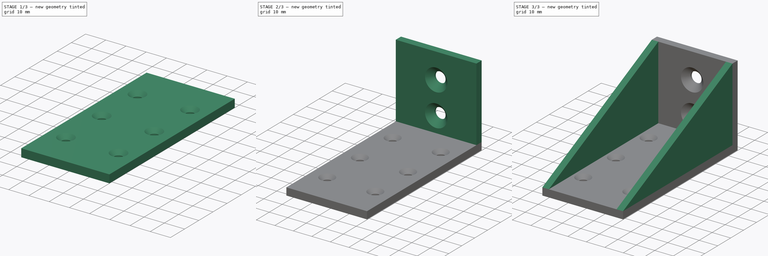
[diagram: build sequence overview — one tinted view per stage of 3, left to right]
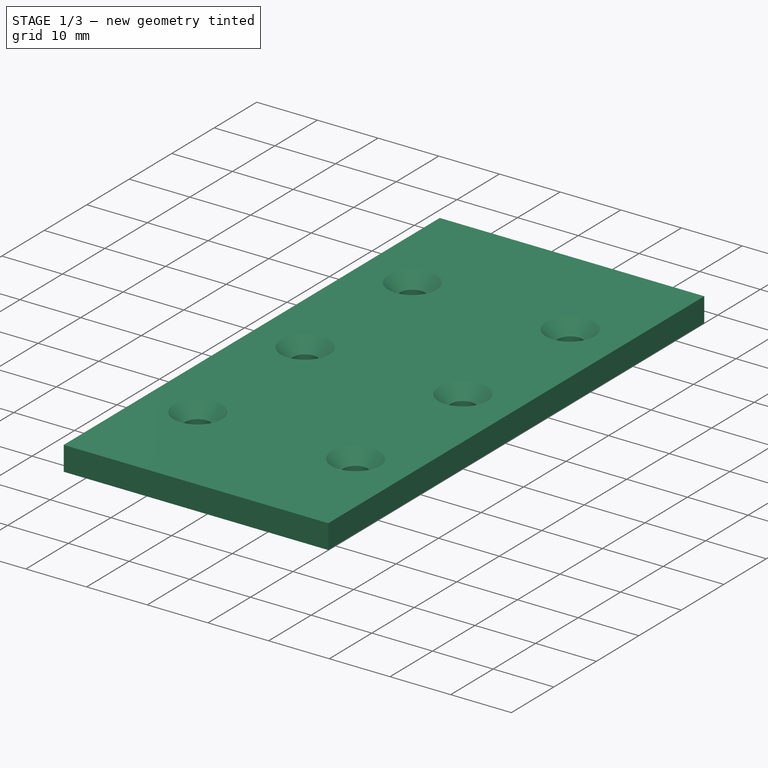
[diagram: stage 1 of 3 — iso view after this stage's code; geometry added in this stage tinted green]
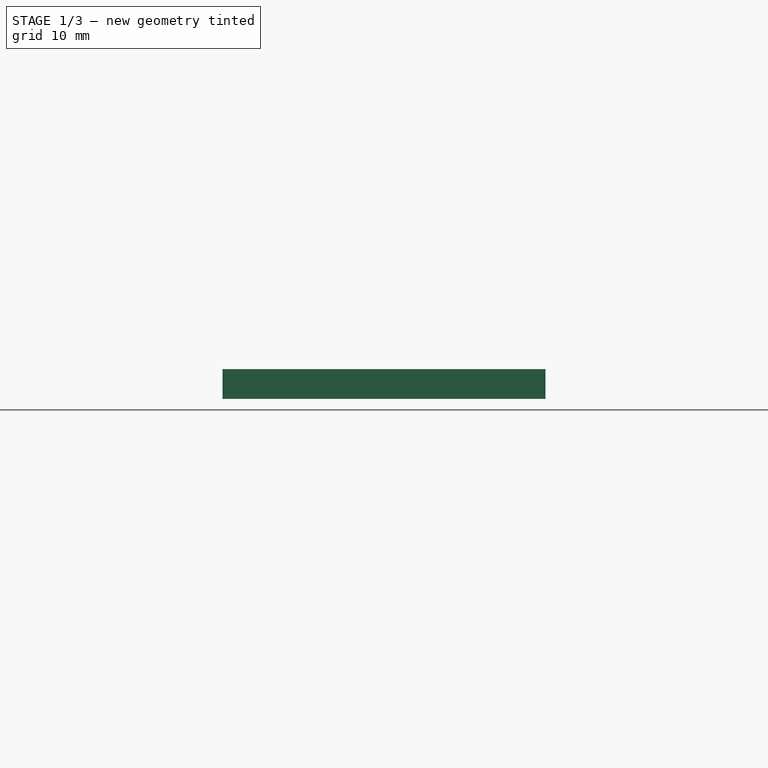
[diagram: stage 1 of 3 — front view after this stage's code; geometry added in this stage tinted green]
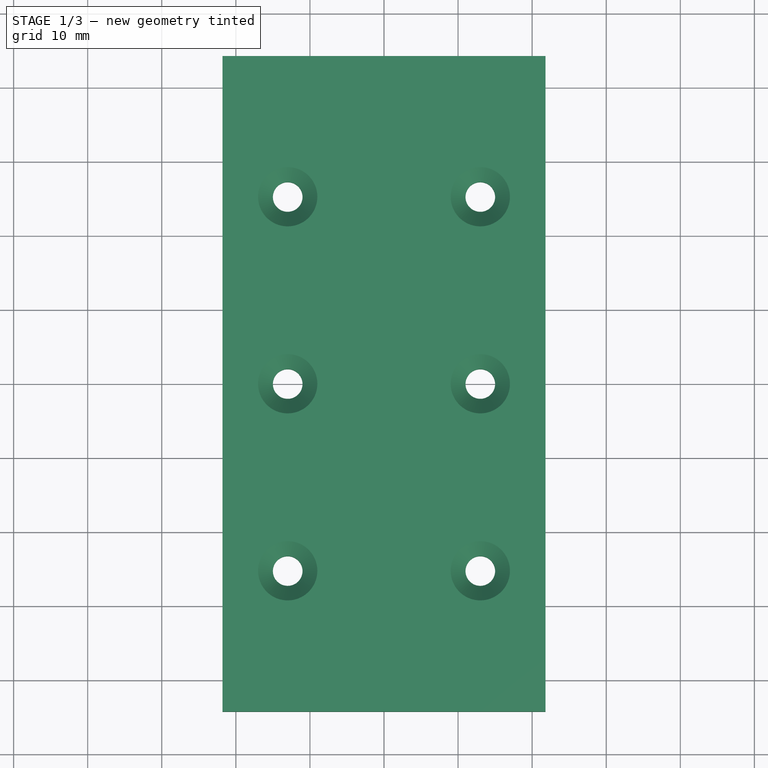
[diagram: stage 1 of 3 — top view after this stage's code; geometry added in this stage tinted green]
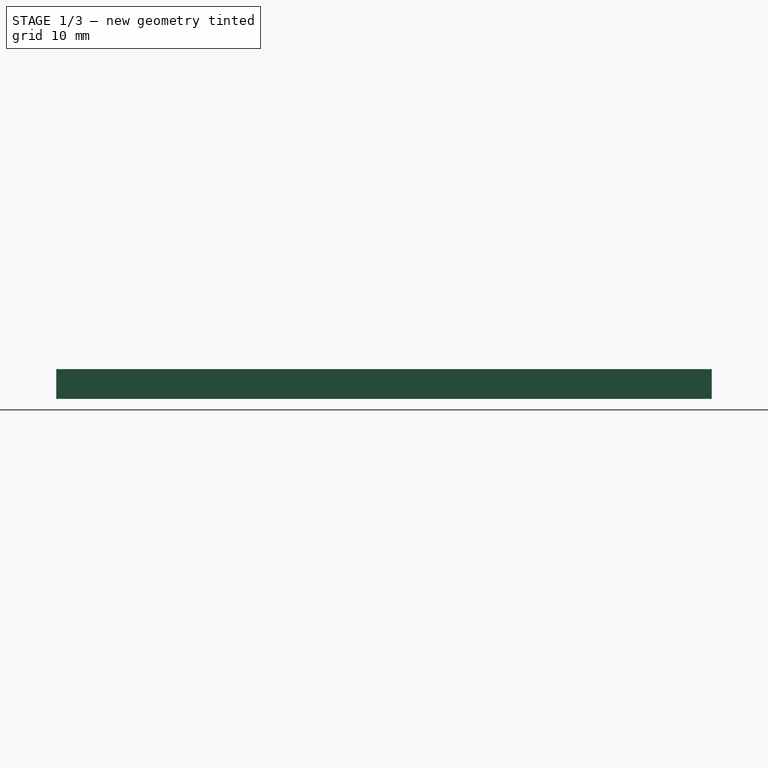
[diagram: stage 1 of 3 — right view after this stage's code; geometry added in this stage tinted green]
FCSTD DOCUMENT  (FreeCAD 1.0R39109 (Git))
Label: Side_Wall_Brackets
License: All rights reserved
LicenseURL: http://en.wikipedia.org/wiki/All_rights_reserved
objects: Sketcher::SketchObject×5, PartDesign::Pad×3, PartDesign::Chamfer×2, PartDesign::Hole×1, PartDesign::Pocket×1, PartDesign::Body×1, App::Part×1
note: 32 computed .brp shape members not serialized (recipe doc carries the construction recipe); baked Part::Feature solids carry a one-line shape summary decoded from their .brp

FEATURE [Sketcher::SketchObject] Sketch
  ArcFitTolerance = 0
  AttachmentSupport = -> [XY_Plane001]
  FullyConstrained = true
  MakeInternals = false
  MapMode = 5
  sketch-geometry (10):
    g0: LineSegment StartX=-21.8 StartY=44.25 StartZ=0 EndX=21.8 EndY=44.25 EndZ=0
    g1: LineSegment StartX=21.8 StartY=44.25 StartZ=0 EndX=21.8 EndY=-44.25 EndZ=0
    g2: LineSegment StartX=21.8 StartY=-44.25 StartZ=0 EndX=-21.8 EndY=-44.25 EndZ=0
    g3: LineSegment StartX=-21.8 StartY=-44.25 StartZ=0 EndX=-21.8 EndY=44.25 EndZ=0
    g4: Circle CenterX=-13 CenterY=0 CenterZ=0 NormalX=0 NormalY=0 NormalZ=1 AngleXU=0 Radius=2
    g5: Circle CenterX=13 CenterY=0 CenterZ=0 NormalX=0 NormalY=0 NormalZ=1 AngleXU=0 Radius=2
    g6: Circle CenterX=-13 CenterY=25.25 CenterZ=0 NormalX=0 NormalY=0 NormalZ=1 AngleXU=0 Radius=2
    g7: Circle CenterX=13 CenterY=25.25 CenterZ=0 NormalX=0 NormalY=0 NormalZ=1 AngleXU=0 Radius=2
    g8: Circle CenterX=-13 CenterY=-25.25 CenterZ=0 NormalX=0 NormalY=0 NormalZ=1 AngleXU=0 Radius=2
    g9: Circle CenterX=13 CenterY=-25.25 CenterZ=0 NormalX=0 NormalY=0 NormalZ=1 AngleXU=0 Radius=2
  constraints (29):
    c: Coincident(g0,g1)
    c: Coincident(g1,g2)
    c: Coincident(g2,g3)
    c: Coincident(g3,g0)
    c: Horizontal(g0)
    c: Horizontal(g2)
    c: Vertical(g1)
    c: Vertical(g3)
    c: DistanceX(g0,g0) = 43.6
    c: DistanceY(g3,g3) = 88.5
    c: Symmetric(g2,g0,g-1)
    c: PointOnObject(g4,g-1)
    c: PointOnObject(g5,g-1)
    c: Equal(g4,g5)
    c: Diameter(g4) = 4
    c: DistanceX(g4,g-1) = 13
    c: DistanceX(g4,g5) = 26
    c: Equal(g8,g9)
    c: Equal(g8,g6)
    c: Equal(g8,g7)
    c: Diameter(g8) = 4
    c: DistanceY(g6,g7) = 0
    c: DistanceY(g9,g8) = 0
    c: DistanceX(g6,g7) = 26
    c: DistanceX(g6,g-1) = 13
    c: DistanceX(g8,g-1) = 13
    c: DistanceX(g8,g9) = 26
    c: DistanceY(g4,g6) = 25.25
    c: DistanceY(g8,g4) = 25.25
FEATURE [PartDesign::Pad] Pad  label="BasePad"
  Direction = (0,0,1)
  Length = 4
  Length2 = 10
  Profile = -> Sketch
  ReferenceAxis = -> Sketch [N_Axis]
  Suppressed = false
  Type = 0
FEATURE [PartDesign::Chamfer] Chamfer
  Angle = 45
  Base = -> Pad [Edge18,Edge30,Edge24,Edge21,Edge27,Edge15]
  BaseFeature = -> Pad
  ChamferType = 0
  FlipDirection = false
  Size = 2
  Size2 = 1
  SupportTransform = false
  Suppressed = false
  UseAllEdges = false
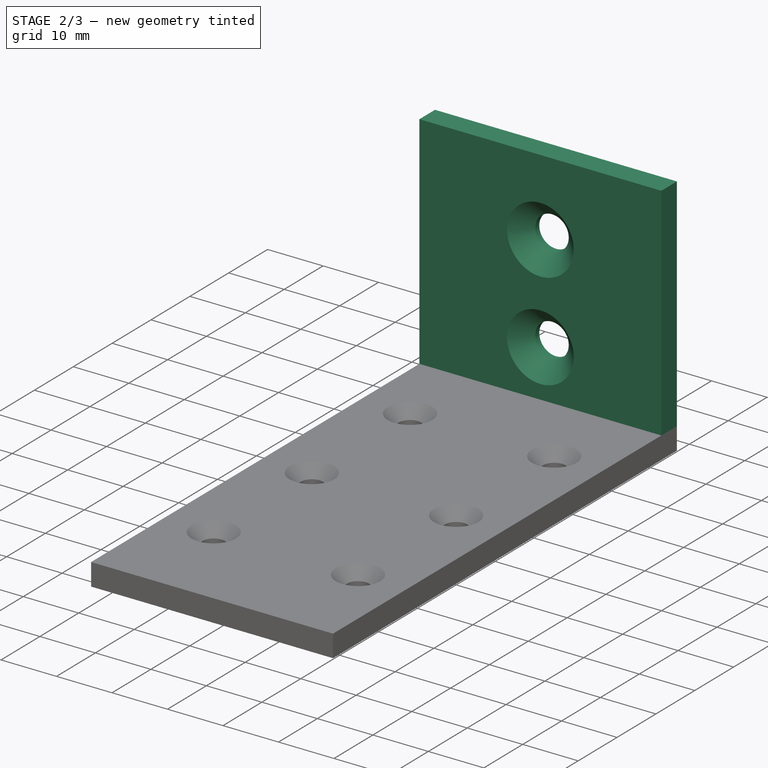
[diagram: stage 2 of 3 — iso view after this stage's code; geometry added in this stage tinted green]
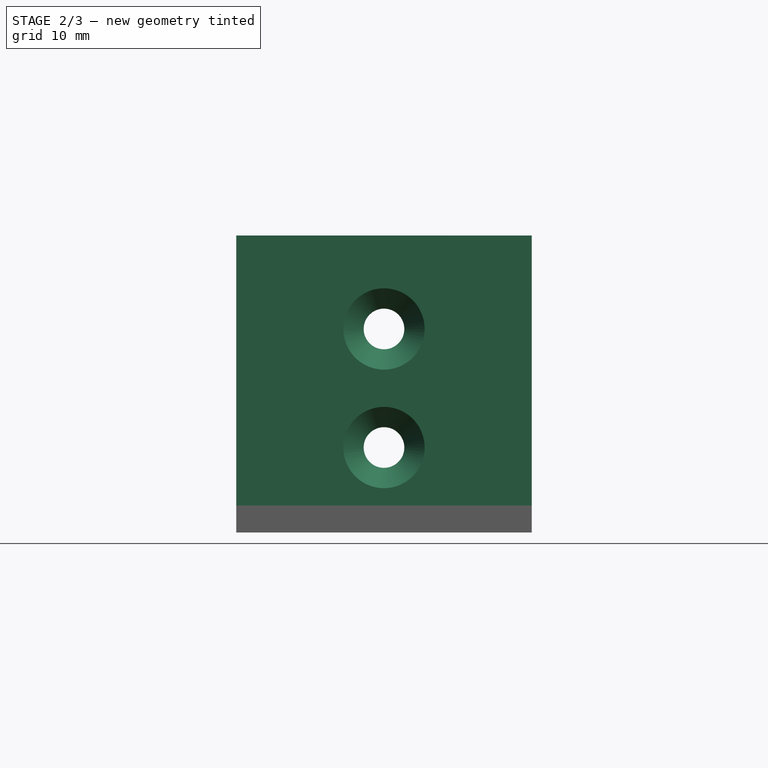
[diagram: stage 2 of 3 — front view after this stage's code; geometry added in this stage tinted green]
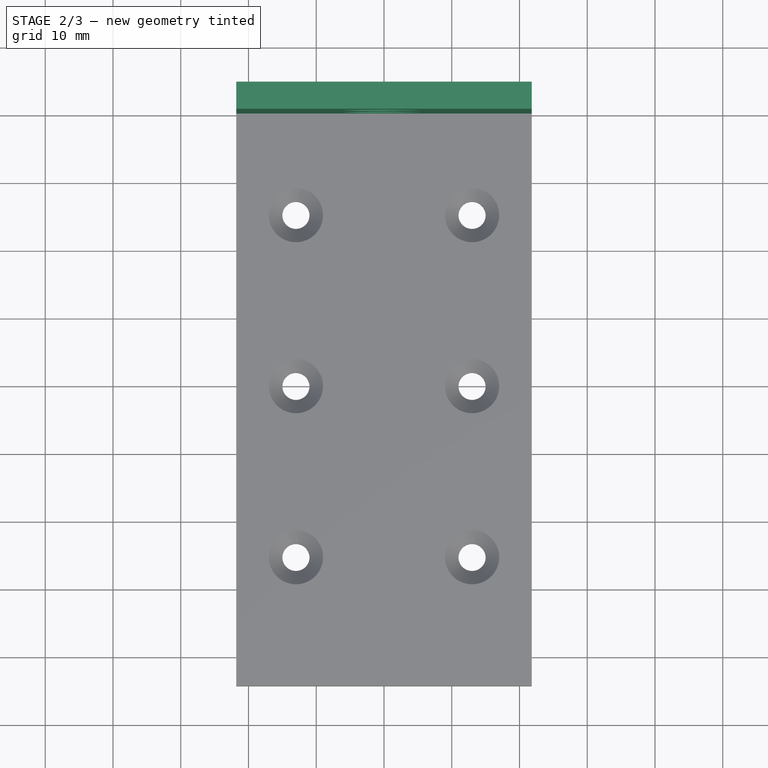
[diagram: stage 2 of 3 — top view after this stage's code; geometry added in this stage tinted green]
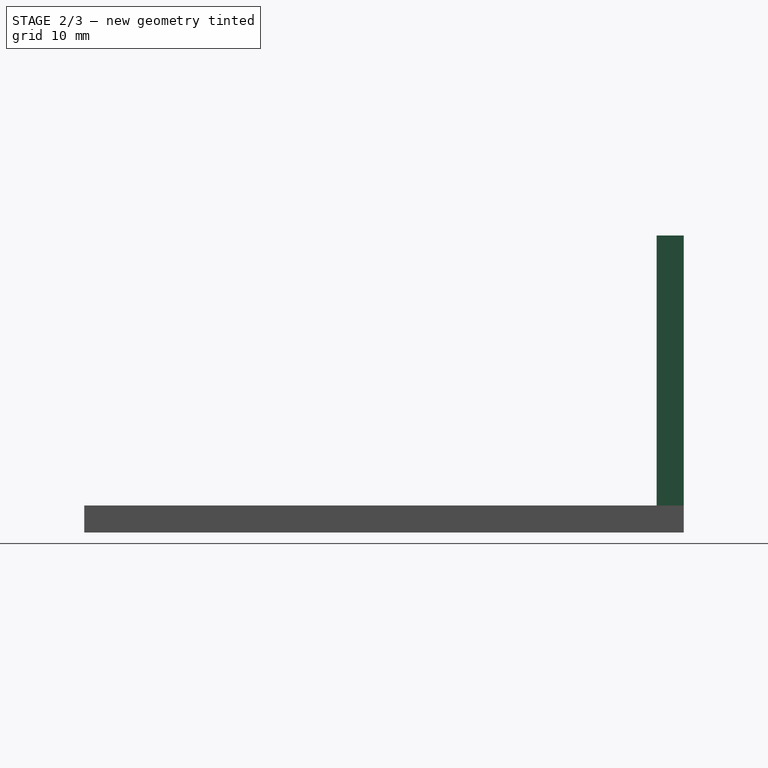
[diagram: stage 2 of 3 — right view after this stage's code; geometry added in this stage tinted green]
FEATURE [Sketcher::SketchObject] Sketch001
  ArcFitTolerance = 1e-06
  AttachmentSupport = -> [Chamfer]
  FullyConstrained = true
  MakeInternals = false
  MapMode = 5
  Placement = pos=(0,0,4) rot=(0,0,1;0rad)
  sketch-geometry (4):
    g0: LineSegment StartX=-21.8 StartY=44.25 StartZ=0 EndX=-21.8 EndY=40.25 EndZ=0
    g1: LineSegment StartX=-21.8 StartY=40.25 StartZ=0 EndX=21.8 EndY=40.25 EndZ=0
    g2: LineSegment StartX=21.8 StartY=40.25 StartZ=0 EndX=21.8 EndY=44.25 EndZ=0
    g3: LineSegment StartX=21.8 StartY=44.25 StartZ=0 EndX=-21.8 EndY=44.25 EndZ=0
  constraints (12):
    c: Coincident(g0,g1)
    c: Coincident(g1,g2)
    c: Coincident(g2,g3)
    c: Coincident(g3,g0)
    c: Vertical(g0)
    c: Vertical(g2)
    c: Horizontal(g1)
    c: DistanceX(g3,g3) = 43.6
    c: DistanceY(g0,g0) = 4
    c: DistanceY(g2,g2) = 4
    c: DistanceX(g0,g-1) = 21.8
    c: DistanceY(g-1,g0) = 44.25
FEATURE [PartDesign::Pad] Pad001
  BaseFeature = -> Chamfer
  Direction = (0,0,1)
  Length = 39.85
  Length2 = 10
  Profile = -> Sketch001
  ReferenceAxis = -> Sketch001 [N_Axis]
  Suppressed = false
  Type = 0
FEATURE [Sketcher::SketchObject] Sketch002
  ArcFitTolerance = 1e-06
  AttachmentSupport = -> [Pad001]
  FullyConstrained = true
  MakeInternals = false
  MapMode = 5
  Placement = pos=(0,44.25,0) rot=(0,0.707107,0.707107;3.14159rad)
  sketch-geometry (2):
    g0: Circle CenterX=0 CenterY=12.55 CenterZ=0 NormalX=0 NormalY=0 NormalZ=1 AngleXU=0 Radius=3
    g1: Circle CenterX=0 CenterY=30.05 CenterZ=0 NormalX=0 NormalY=0 NormalZ=1 AngleXU=0 Radius=3
  constraints (6):
    c: PointOnObject(g0,g-2)
    c: PointOnObject(g1,g-2)
    c: Equal(g0,g1)
    c: Diameter(g0) = 6
    c: DistanceY(g-1,g0) = 12.55
    c: DistanceY(g0,g1) = 17.5
FEATURE [PartDesign::Hole] Hole
  BaseFeature = -> Pad001
  CustomThreadClearance = 0
  Depth = 25
  DepthType = 0
  Diameter = 6
  DrillForDepth = false
  DrillPoint = 1
  DrillPointAngle = 118
  HoleCutCountersinkAngle = 90
  HoleCutCustomValues = false
  HoleCutDepth = 0
  HoleCutDiameter = 6.1
  HoleCutType = 0
  ModelThread = false
  Profile = -> Sketch002
  Suppressed = false
  Tapered = false
  TaperedAngle = 90
  ThreadClass = 0
  ThreadDepth = 25
  ThreadDepthType = 0
  ThreadDirection = 0
  ThreadFit = 0
  ThreadSize = 0
  ThreadType = 0
  Threaded = false
  UseCustomThreadClearance = false
FEATURE [PartDesign::Chamfer] Chamfer001
  Angle = 45
  Base = -> Hole [Edge44,Edge45]
  BaseFeature = -> Hole
  ChamferType = 0
  FlipDirection = false
  Size = 3
  Size2 = 1
  SupportTransform = false
  Suppressed = false
  UseAllEdges = false
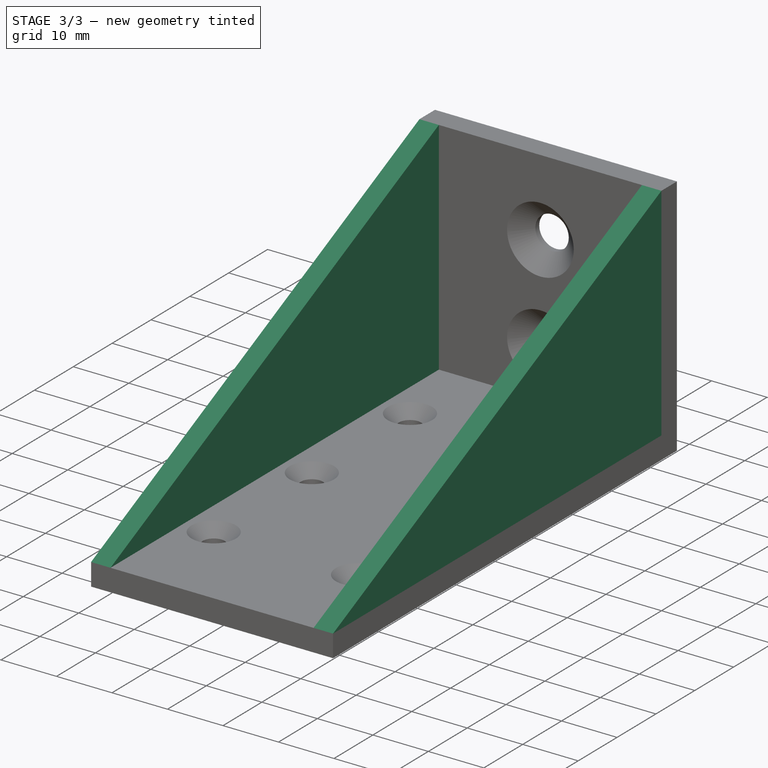
[diagram: stage 3 of 3 — iso view after this stage's code; geometry added in this stage tinted green]
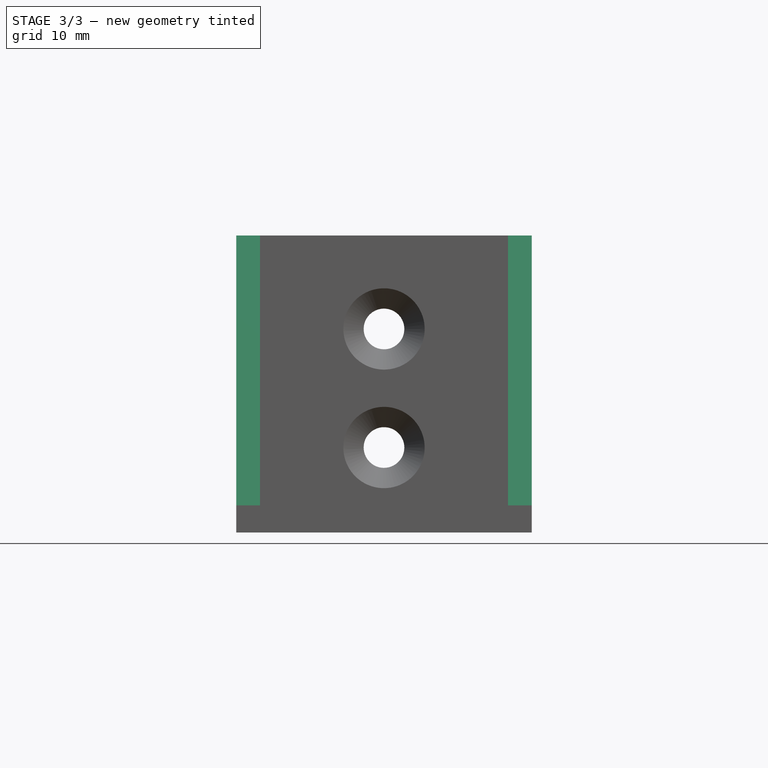
[diagram: stage 3 of 3 — front view after this stage's code; geometry added in this stage tinted green]
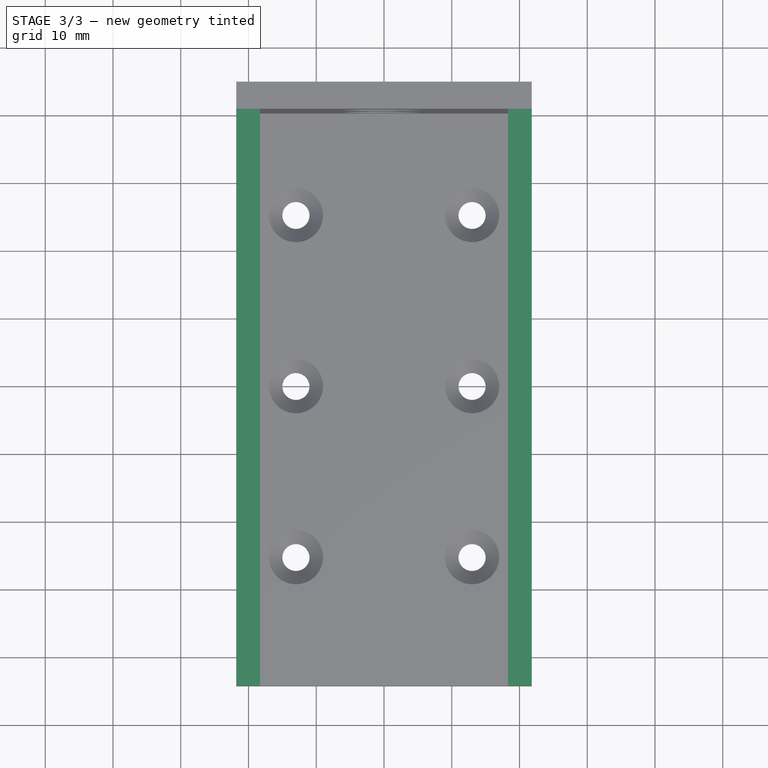
[diagram: stage 3 of 3 — top view after this stage's code; geometry added in this stage tinted green]
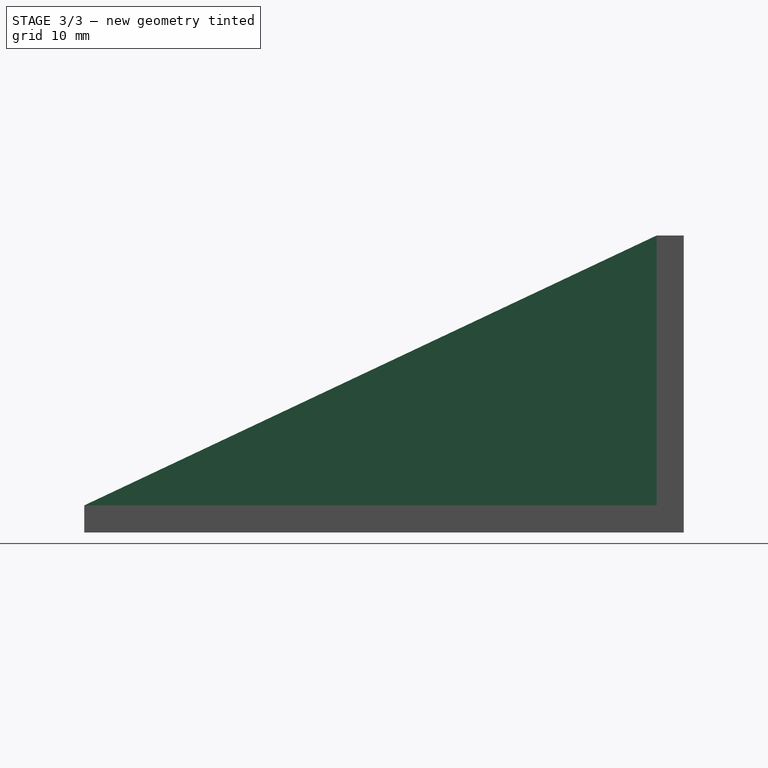
[diagram: stage 3 of 3 — right view after this stage's code; geometry added in this stage tinted green]
FEATURE [Sketcher::SketchObject] Sketch003
  ArcFitTolerance = 1e-06
  AttachmentSupport = -> [Chamfer001]
  FullyConstrained = true
  MakeInternals = false
  MapMode = 5
  Placement = pos=(0,0,4) rot=(0,0,1;0rad)
  sketch-geometry (8):
    g0: LineSegment StartX=-21.8 StartY=44.25 StartZ=0 EndX=-21.8 EndY=-44.25 EndZ=0
    g1: LineSegment StartX=-21.8 StartY=-44.25 StartZ=0 EndX=-18.3 EndY=-44.25 EndZ=0
    g2: LineSegment StartX=-18.3 StartY=-44.25 StartZ=0 EndX=-18.3 EndY=44.25 EndZ=0
    g3: LineSegment StartX=-18.3 StartY=44.25 StartZ=0 EndX=-21.8 EndY=44.25 EndZ=0
    g4: LineSegment StartX=18.3 StartY=44.25 StartZ=0 EndX=18.3 EndY=-44.25 EndZ=0
    g5: LineSegment StartX=18.3 StartY=-44.25 StartZ=0 EndX=21.8 EndY=-44.25 EndZ=0
    g6: LineSegment StartX=21.8 StartY=-44.25 StartZ=0 EndX=21.8 EndY=44.25 EndZ=0
    g7: LineSegment StartX=21.8 StartY=44.25 StartZ=0 EndX=18.3 EndY=44.25 EndZ=0
  constraints (24):
    c: Coincident(g0,g1)
    c: Coincident(g1,g2)
    c: Coincident(g2,g3)
    c: Coincident(g3,g0)
    c: Vertical(g0)
    c: Vertical(g2)
    c: Horizontal(g1)
    c: Horizontal(g3)
    c: DistanceY(g2,g2) = 88.5
    c: DistanceY(g-1,g2) = 44.25
    c: DistanceX(g1,g1) = 3.5
    c: DistanceX(g0,g-1) = 21.8
    c: Coincident(g4,g5)
    c: Coincident(g5,g6)
    c: Coincident(g6,g7)
    c: Coincident(g7,g4)
    c: Vertical(g4)
    c: Vertical(g6)
    c: Horizontal(g5)
    c: Horizontal(g7)
    c: DistanceY(g6,g6) = 88.5
    c: DistanceX(g5,g5) = 3.5
    c: DistanceX(g-1,g6) = 21.8
    c: DistanceY(g-1,g4) = 44.25
FEATURE [PartDesign::Pad] Pad002
  BaseFeature = -> Chamfer001
  Direction = (0,0,1)
  Length = 39.85
  Length2 = 10
  Profile = -> Sketch003
  ReferenceAxis = -> Sketch003 [N_Axis]
  Suppressed = false
  Type = 0
FEATURE [Sketcher::SketchObject] Sketch004
  ArcFitTolerance = 1e-06
  AttachmentSupport = -> [Pad002]
  FullyConstrained = false
  MakeInternals = false
  MapMode = 5
  Placement = pos=(-21.8,0,0) rot=(0.57735,-0.57735,-0.57735;2.0944rad)
  sketch-geometry (4):
    g0: LineSegment StartX=-40.2549 StartY=43.8504 StartZ=0 EndX=44.3985 EndY=3.93337 EndZ=0
    g1: LineSegment StartX=44.3985 StartY=3.93337 StartZ=0 EndX=49.8014 EndY=49.1273 EndZ=0
    g2: LineSegment StartX=49.8014 StartY=49.1273 StartZ=0 EndX=-36.7627 EndY=49.1273 EndZ=0
    g3: LineSegment StartX=-36.7627 StartY=49.1273 StartZ=0 EndX=-40.2549 EndY=43.8504 EndZ=0
  constraints (5):
    c: Coincident(g0,g1)
    c: Coincident(g1,g2)
    c: Horizontal(g2)
    c: Coincident(g3,g2)
    c: Coincident(g3,g0)
FEATURE [PartDesign::Pocket] Pocket
  BaseFeature = -> Pad002
  Direction = (1,0,0)
  Length = 5
  Length2 = 5
  Profile = -> Sketch004
  ReferenceAxis = -> Sketch004 [N_Axis]
  Suppressed = false
  Type = 1
FEATURE [PartDesign::Body] Body  label="BracketBody"
  AllowCompound = false
  Group = -> [Sketch,Pad,Chamfer,Sketch001,Pad001,Sketch002,Hole,Chamfer001,Sketch003,Pad002,Sketch004,Pocket]
  Origin = -> Origin001
  Tip = -> Pocket
FEATURE [App::Part] Part  label="Bracket"
  Group = -> [Body]
  Origin = -> Origin
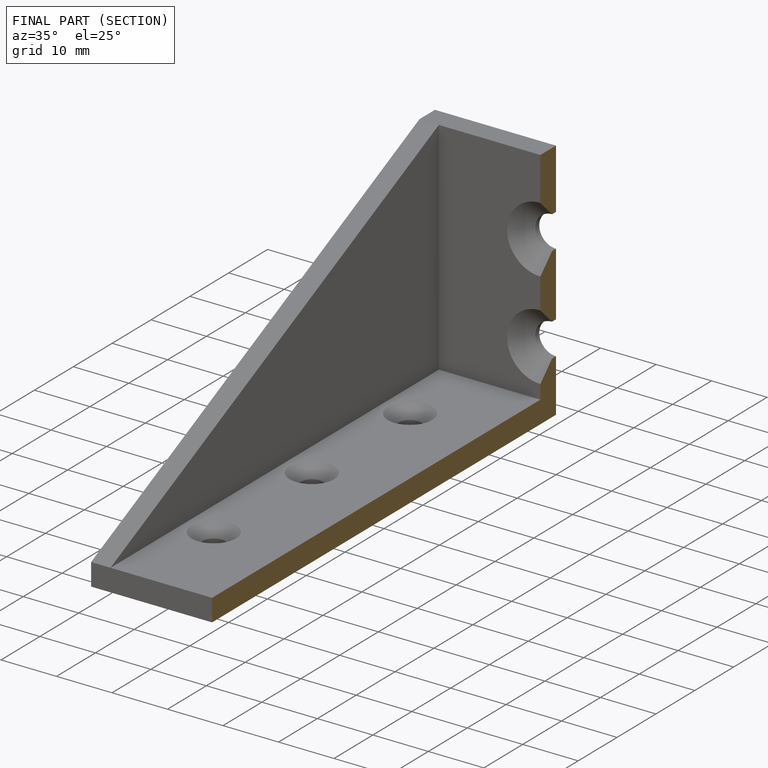
[diagram: finished part — half-section view (interior)]
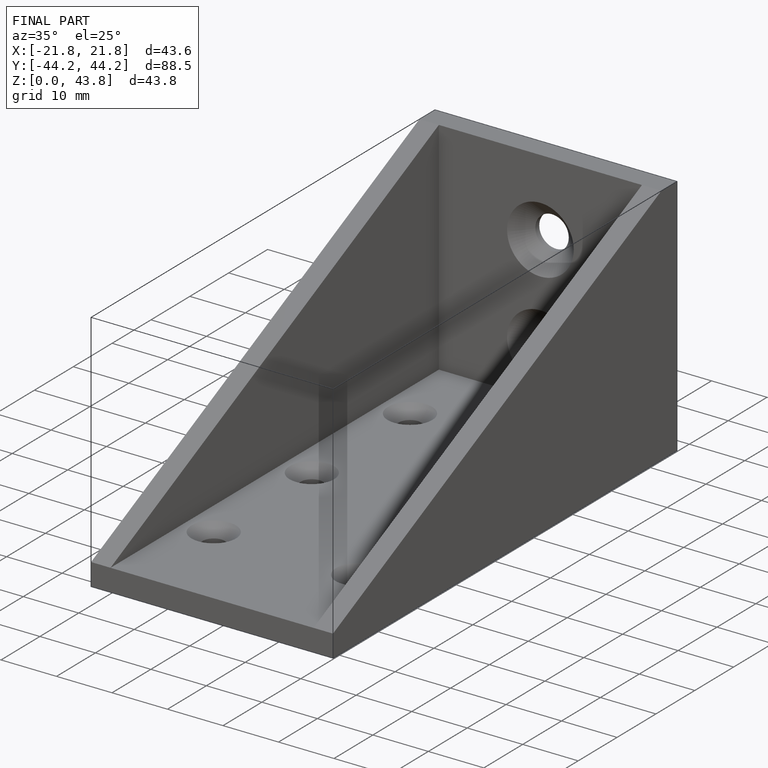
[diagram: finished part — iso view with bounding-box wireframe]
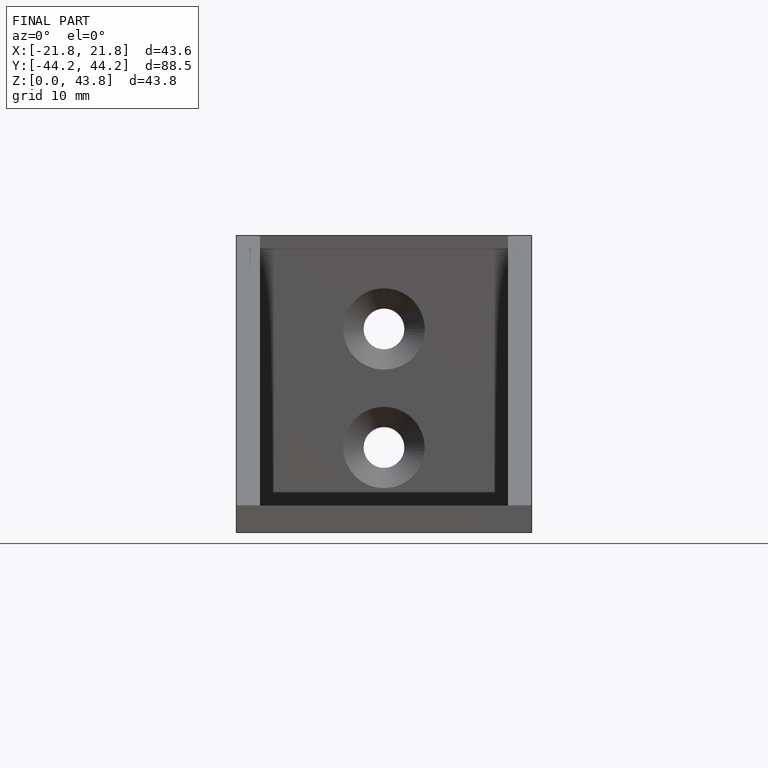
[diagram: finished part — front view with bounding-box wireframe]
